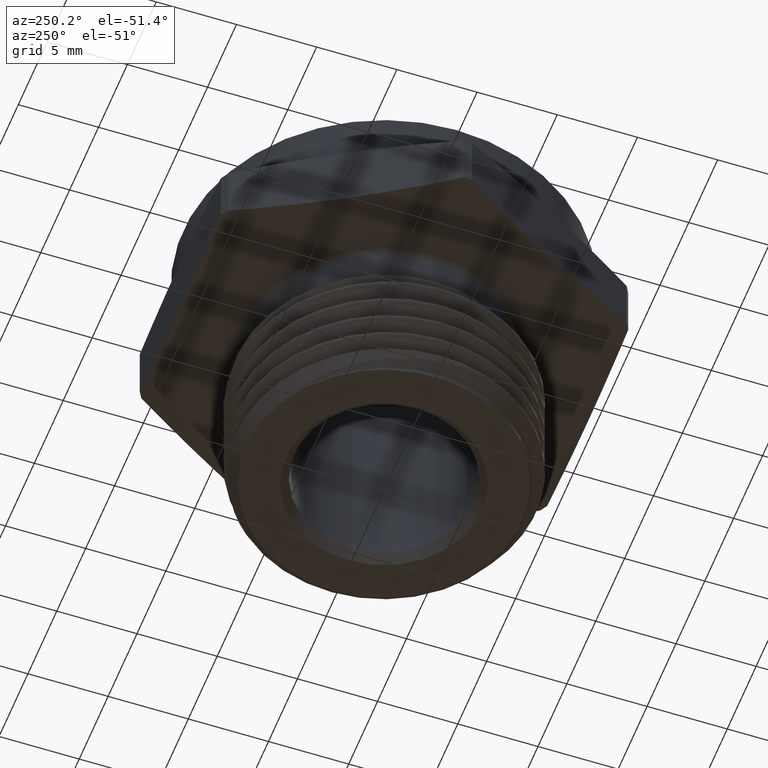
[diagram: clean part render]
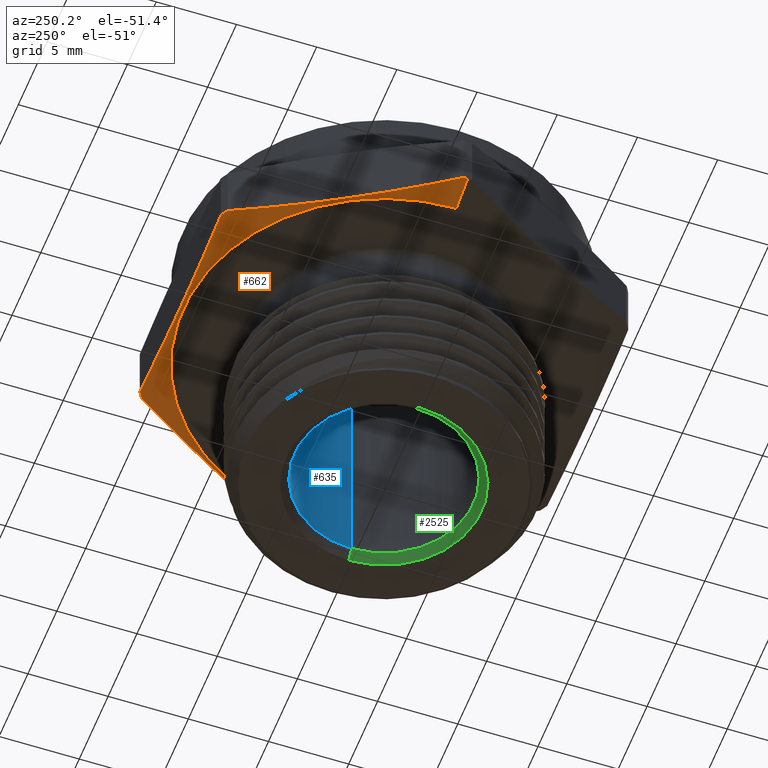
[diagram: same view with three faces highlighted in distinct colors, each labeled with its STEP entity id]
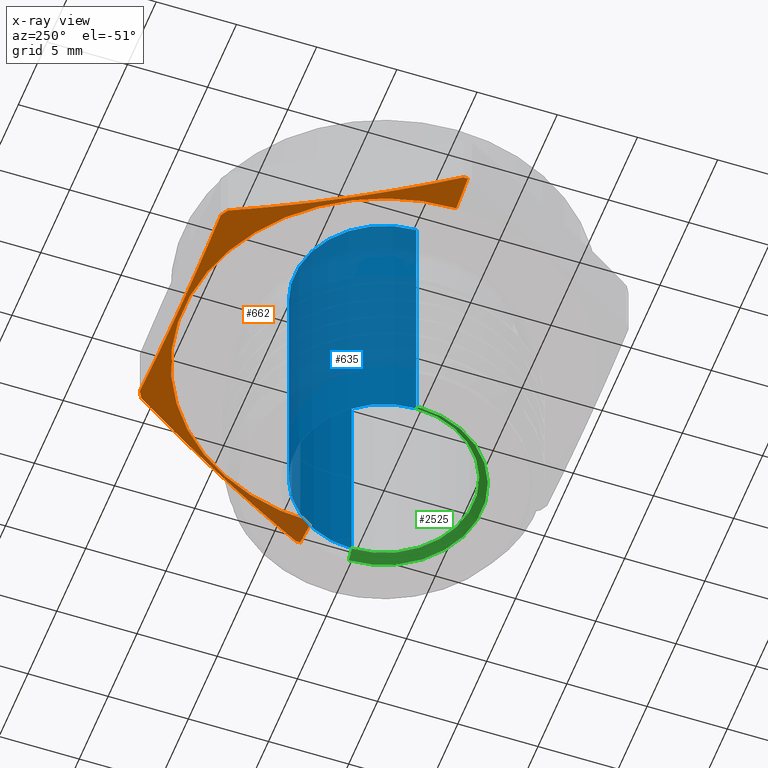
[diagram: x-ray of the same camera — body ghosted, the three highlighted faces saturated]
A machine part, auxiliary view with three faces highlighted in distinct colors.
The next image is the same camera in x-ray (body ghosted, the three faces saturated) — at least one of them is partly hidden behind the body in this view.
Their STEP definitions:

[orange] entity #662 — the highlighted conical surface has half-angle 78 deg.
#80 = CONICAL_SURFACE ( 'NONE', #444, 0.4925000000000000500, 1.361356816555576500 ) ;
#140 = LINE ( 'NONE', #1998, #625 ) ;
#141 = ORIENTED_EDGE ( 'NONE', *, *, #2641, .T. ) ;
#142 = ORIENTED_EDGE ( 'NONE', *, *, #2642, .T. ) ;
#143 = ORIENTED_EDGE ( 'NONE', *, *, #2643, .T. ) ;
#144 = ORIENTED_EDGE ( 'NONE', *, *, #2644, .T. ) ;
#145 = ORIENTED_EDGE ( 'NONE', *, *, #2645, .T. ) ;
#146 = ORIENTED_EDGE ( 'NONE', *, *, #2646, .F. ) ;
#209 = ORIENTED_EDGE ( 'NONE', *, *, #2637, .F. ) ;
#210 = ORIENTED_EDGE ( 'NONE', *, *, #2638, .T. ) ;
#211 = ORIENTED_EDGE ( 'NONE', *, *, #2639, .T. ) ;
#212 = ORIENTED_EDGE ( 'NONE', *, *, #2640, .T. ) ;
#316 = VERTEX_POINT ( 'NONE', #2820 ) ;
#317 = VERTEX_POINT ( 'NONE', #3099 ) ;
#318 = VERTEX_POINT ( 'NONE', #3098 ) ;
#319 = VERTEX_POINT ( 'NONE', #3107 ) ;
#320 = VERTEX_POINT ( 'NONE', #3097 ) ;
#321 = VERTEX_POINT ( 'NONE', #3096 ) ;
#322 = VERTEX_POINT ( 'NONE', #3100 ) ;
#323 = VERTEX_POINT ( 'NONE', #3095 ) ;
#326 = VERTEX_POINT ( 'NONE', #3092 ) ;
#336 = VERTEX_POINT ( 'NONE', #3081 ) ;
#444 = AXIS2_PLACEMENT_3D ( 'NONE', #1403, #1404, #1402 ) ;
#490 = AXIS2_PLACEMENT_3D ( 'NONE', #1978, #1979, #1980 ) ;
#491 = AXIS2_PLACEMENT_3D ( 'NONE', #1983, #1984, #1985 ) ;
#492 = AXIS2_PLACEMENT_3D ( 'NONE', #1995, #1996, #1997 ) ;
#493 = AXIS2_PLACEMENT_3D ( 'NONE', #2009, #2010, #2011 ) ;
#494 = AXIS2_PLACEMENT_3D ( 'NONE', #2020, #2021, #2022 ) ;
#551 = B_SPLINE_CURVE_WITH_KNOTS ( 'NONE', 3,
 ( #1981, #1982, #1986, #1987, #1988, #1989, #1990, #1991, #1992 ),
 .UNSPECIFIED., .F., .F.,
 ( 4, 2, 1, 2, 4 ),
 ( 1.944233093177090900E-006, 0.003513238848234747300, 0.007024533463376317700, 0.01053582807851788400, 0.01404712269365945100 ),
 .UNSPECIFIED. ) ;
#552 = B_SPLINE_CURVE_WITH_KNOTS ( 'NONE', 3,
 ( #1993, #1994, #1999, #2000, #2001, #2002, #2003, #2004, #2005, #2006 ),
 .UNSPECIFIED., .F., .F.,
 ( 4, 2, 2, 2, 4 ),
 ( 0.01247922833637218900, 0.01600441147606443400, 0.01952959461575667900, 0.02305477775544891700, 0.02657996089514116200 ),
 .UNSPECIFIED. ) ;
#553 = B_SPLINE_CURVE_WITH_KNOTS ( 'NONE', 3,
 ( #2007, #2008, #2013, #2014, #2015, #2016, #2017, #2018, #2019 ),
 .UNSPECIFIED., .F., .F.,
 ( 4, 2, 1, 2, 4 ),
 ( 1.944233093197119000E-006, 0.003513238848234765500, 0.007024533463376334200, 0.01053582807851790500, 0.01404712269365947200 ),
 .UNSPECIFIED. ) ;
#615 = LINE ( 'NONE', #1977, #624 ) ;
#620 = CIRCLE ( 'NONE', #490, 0.4925000000000000500 ) ;
#622 = CIRCLE ( 'NONE', #491, 0.5713502691896256100 ) ;
#624 = VECTOR ( 'NONE', #1973, 39.37007874015748100 ) ;
#625 = VECTOR ( 'NONE', #2012, 39.37007874015748900 ) ;
#626 = CIRCLE ( 'NONE', #492, 0.5713502691896256100 ) ;
#627 = CIRCLE ( 'NONE', #493, 0.5713502691896256100 ) ;
#628 = CIRCLE ( 'NONE', #494, 0.5713502691896256100 ) ;
#662 = ADVANCED_FACE ( 'NONE', ( #2465 ), #80, .T. ) ;
#716 = EDGE_LOOP ( 'NONE', ( #209, #210, #211, #212, #141, #142, #143, #144, #145, #146 ) ) ;
#1402 = DIRECTION ( 'NONE',  ( 1.000000000000000000, 0.0000000000000000000, -1.224646799147349800E-016 ) ) ;
#1403 = CARTESIAN_POINT ( 'NONE',  ( 7.386316929609608200E-033, 0.0000000000000000000, 6.031385485800698100E-017 ) ) ;
#1404 = DIRECTION ( 'NONE',  ( 1.224646799147349800E-016, 0.0000000000000000000, 1.000000000000000000 ) ) ;
#1973 = DIRECTION ( 'NONE',  ( -0.9781476007338054700, 1.197885328332318200E-016, 0.2079116908177600400 ) ) ;
#1977 = CARTESIAN_POINT ( 'NONE',  ( -0.4925000000000000500, 6.031385485800715400E-017, 1.206277097160139600E-016 ) ) ;
#1978 = CARTESIAN_POINT ( 'NONE',  ( 7.386316929609608200E-033, 0.0000000000000000000, 6.031385485800698100E-017 ) ) ;
#1979 = DIRECTION ( 'NONE',  ( -1.224646799147349800E-016, -0.0000000000000000000, -1.000000000000000000 ) ) ;
#1980 = DIRECTION ( 'NONE',  ( -1.000000000000000000, 0.0000000000000000000, 1.224646799147349800E-016 ) ) ;
#1981 = CARTESIAN_POINT ( 'NONE',  ( -0.5712526473702338500, 0.01056139079652698400, 0.01676014210570267100 ) ) ;
#1982 = CARTESIAN_POINT ( 'NONE',  ( -0.5482126564572315000, 0.05046782566377240600, 0.01202047403019147400 ) ) ;
#1983 = CARTESIAN_POINT ( 'NONE',  ( 2.052525438300341200E-018, 0.0000000000000000000, 0.01676014210570260200 ) ) ;
#1984 = DIRECTION ( 'NONE',  ( -1.224646799147349800E-016, -0.0000000000000000000, -1.000000000000000000 ) ) ;
#1985 = DIRECTION ( 'NONE',  ( -1.000000000000000000, 0.0000000000000000000, 1.232701897323891900E-016 ) ) ;
#1986 = CARTESIAN_POINT ( 'NONE',  ( -0.5251726655442291400, 0.09037426053101785300, 0.008191484674030425800 ) ) ;
#1987 = CARTESIAN_POINT ( 'NONE',  ( -0.4790926837182244400, 0.1701871302655087700, 0.002971307794232203700 ) ) ;
#1988 = CARTESIAN_POINT ( 'NONE',  ( -0.4330127018922195800, 0.2499999999999997200, 0.0002170406308183443100 ) ) ;
#1989 = CARTESIAN_POINT ( 'NONE',  ( -0.3869327200662146000, 0.3298128697344907500, 0.002971307794232214100 ) ) ;
#1990 = CARTESIAN_POINT ( 'NONE',  ( -0.3408527382402099000, 0.4096257394689816200, 0.008191484674030429300 ) ) ;
#1991 = CARTESIAN_POINT ( 'NONE',  ( -0.3178127473272074900, 0.4495321743362270000, 0.01202047403019145000 ) ) ;
#1992 = CARTESIAN_POINT ( 'NONE',  ( -0.2947727564142051400, 0.4894386092034723700, 0.01676014210570252900 ) ) ;
#1993 = CARTESIAN_POINT ( 'NONE',  ( -0.2764798909560289800, 0.5000000000000000000, 0.01676014210570263600 ) ) ;
#1994 = CARTESIAN_POINT ( 'NONE',  ( -0.2304247505594923800, 0.5000000000000001100, 0.01202302915555247500 ) ) ;
#1995 = CARTESIAN_POINT ( 'NONE',  ( 2.052525438300341200E-018, 0.0000000000000000000, 0.01676014210570260200 ) ) ;
#1996 = DIRECTION ( 'NONE',  ( -1.224646799147349800E-016, -0.0000000000000000000, -1.000000000000000000 ) ) ;
#1997 = DIRECTION ( 'NONE',  ( -1.000000000000000000, 0.0000000000000000000, 1.232701897323891900E-016 ) ) ;
#1998 = CARTESIAN_POINT ( 'NONE',  ( 0.4925000000000000500, 0.0000000000000000000, 0.0000000000000000000 ) ) ;
#1999 = CARTESIAN_POINT ( 'NONE',  ( -0.1842048312148132100, 0.5000000000000001100, 0.008181783962476948600 ) ) ;
#2000 = CARTESIAN_POINT ( 'NONE',  ( -0.09191216363009094300, 0.5000000000000000000, 0.002960465671903413300 ) ) ;
#2001 = CARTESIAN_POINT ( 'NONE',  ( -0.04579363481263580600, 0.4999999999999999400, 0.001588433088826188800 ) ) ;
#2002 = CARTESIAN_POINT ( 'NONE',  ( 0.04638156483337255200, 0.4999999999999999400, 0.001599952072553285600 ) ) ;
#2003 = CARTESIAN_POINT ( 'NONE',  ( 0.09243824480201570700, 0.5000000000000001100, 0.002983096476316943100 ) ) ;
#2004 = CARTESIAN_POINT ( 'NONE',  ( 0.1844964698020087300, 0.5000000000000001100, 0.008205478053863958900 ) ) ;
#2005 = CARTESIAN_POINT ( 'NONE',  ( 0.2304983317507585700, 0.5000000000000001100, 0.01203059752709647300 ) ) ;
#2006 = CARTESIAN_POINT ( 'NONE',  ( 0.2764798909560289800, 0.5000000000000000000, 0.01676014210570252900 ) ) ;
#2007 = CARTESIAN_POINT ( 'NONE',  ( 0.2947727564142047500, 0.4894386092034727600, 0.01676014210570256300 ) ) ;
#2008 = CARTESIAN_POINT ( 'NONE',  ( 0.3178127473272071000, 0.4495321743362271600, 0.01202047403019136700 ) ) ;
#2009 = CARTESIAN_POINT ( 'NONE',  ( 2.052525438300341200E-018, 0.0000000000000000000, 0.01676014210570260200 ) ) ;
#2010 = DIRECTION ( 'NONE',  ( -1.224646799147349800E-016, -0.0000000000000000000, -1.000000000000000000 ) ) ;
#2011 = DIRECTION ( 'NONE',  ( -1.000000000000000000, 0.0000000000000000000, 1.232701897323891900E-016 ) ) ;
#2012 = DIRECTION ( 'NONE',  ( 0.9781476007338054700, 0.0000000000000000000, 0.2079116908177598100 ) ) ;
#2013 = CARTESIAN_POINT ( 'NONE',  ( 0.3408527382402096200, 0.4096257394689820100, 0.008191484674030332200 ) ) ;
#2014 = CARTESIAN_POINT ( 'NONE',  ( 0.3869327200662144300, 0.3298128697344909200, 0.002971307794232109200 ) ) ;
#2015 = CARTESIAN_POINT ( 'NONE',  ( 0.4330127018922192400, 0.2500000000000002200, 0.0002170406308182319800 ) ) ;
#2016 = CARTESIAN_POINT ( 'NONE',  ( 0.4790926837182242200, 0.1701871302655092200, 0.002971307794232089700 ) ) ;
#2017 = CARTESIAN_POINT ( 'NONE',  ( 0.5251726655442290300, 0.09037426053101838000, 0.008191484674030299200 ) ) ;
#2018 = CARTESIAN_POINT ( 'NONE',  ( 0.5482126564572313800, 0.05046782566377296100, 0.01202047403019133900 ) ) ;
#2019 = CARTESIAN_POINT ( 'NONE',  ( 0.5712526473702337300, 0.01056139079652753000, 0.01676014210570252900 ) ) ;
#2020 = CARTESIAN_POINT ( 'NONE',  ( 2.052525438300341200E-018, 0.0000000000000000000, 0.01676014210570260200 ) ) ;
#2021 = DIRECTION ( 'NONE',  ( -1.224646799147349800E-016, -0.0000000000000000000, -1.000000000000000000 ) ) ;
#2022 = DIRECTION ( 'NONE',  ( -1.000000000000000000, 0.0000000000000000000, 1.232701897323891900E-016 ) ) ;
#2465 = FACE_OUTER_BOUND ( 'NONE', #716, .T. ) ;
#2637 = EDGE_CURVE ( 'NONE', #336, #326, #620, .T. ) ;
#2638 = EDGE_CURVE ( 'NONE', #336, #323, #615, .T. ) ;
#2639 = EDGE_CURVE ( 'NONE', #323, #322, #622, .T. ) ;
#2640 = EDGE_CURVE ( 'NONE', #322, #321, #551, .T. ) ;
#2641 = EDGE_CURVE ( 'NONE', #321, #320, #626, .T. ) ;
#2642 = EDGE_CURVE ( 'NONE', #320, #319, #552, .T. ) ;
#2643 = EDGE_CURVE ( 'NONE', #319, #318, #627, .T. ) ;
#2644 = EDGE_CURVE ( 'NONE', #318, #317, #553, .T. ) ;
#2645 = EDGE_CURVE ( 'NONE', #317, #316, #628, .T. ) ;
#2646 = EDGE_CURVE ( 'NONE', #326, #316, #140, .T. ) ;
#2820 = CARTESIAN_POINT ( 'NONE',  ( 0.5713502691896256100, 0.0000000000000000000, 0.01676014210570253200 ) ) ;
#3081 = CARTESIAN_POINT ( 'NONE',  ( -0.4925000000000000500, 6.031385485800715400E-017, 1.206277097160139600E-016 ) ) ;
#3092 = CARTESIAN_POINT ( 'NONE',  ( 0.4925000000000000500, 0.0000000000000000000, 0.0000000000000000000 ) ) ;
#3095 = CARTESIAN_POINT ( 'NONE',  ( -0.5713502691896256100, 0.0000000000000000000, 0.01676014210570267100 ) ) ;
#3096 = CARTESIAN_POINT ( 'NONE',  ( -0.2947727564142051400, 0.4894386092034723700, 0.01676014210570252900 ) ) ;
#3097 = CARTESIAN_POINT ( 'NONE',  ( -0.2764798909560289800, 0.5000000000000000000, 0.01676014210570263600 ) ) ;
#3098 = CARTESIAN_POINT ( 'NONE',  ( 0.2947727564142047500, 0.4894386092034727600, 0.01676014210570256300 ) ) ;
#3099 = CARTESIAN_POINT ( 'NONE',  ( 0.5712526473702337300, 0.01056139079652753000, 0.01676014210570252900 ) ) ;
#3100 = CARTESIAN_POINT ( 'NONE',  ( -0.5712526473702338500, 0.01056139079652698400, 0.01676014210570267100 ) ) ;
#3107 = CARTESIAN_POINT ( 'NONE',  ( 0.2764798909560289800, 0.5000000000000000000, 0.01676014210570252900 ) ) ;

[blue] entity #635 — the highlighted cylindrical surface (partial cylindrical patch) has radius 5.588 mm, axis along (-0, -0, 1).
#32 = EDGE_LOOP ( 'NONE', ( #2792, #2793, #2794, #2795 ) ) ;
#271 = CIRCLE ( 'NONE', #515, 0.2200000000000001100 ) ;
#272 = CIRCLE ( 'NONE', #516, 0.2200000000000000600 ) ;
#389 = VERTEX_POINT ( 'NONE', #3054 ) ;
#515 = AXIS2_PLACEMENT_3D ( 'NONE', #801, #802, #803 ) ;
#516 = AXIS2_PLACEMENT_3D ( 'NONE', #806, #807, #808 ) ;
#583 = LINE ( 'NONE', #1729, #588 ) ;
#587 = LINE ( 'NONE', #1734, #591 ) ;
#588 = VECTOR ( 'NONE', #1724, 39.37007874015748100 ) ;
#591 = VECTOR ( 'NONE', #1733, 39.37007874015748100 ) ;
#635 = ADVANCED_FACE ( 'NONE', ( #2417 ), #2421, .F. ) ;
#801 = CARTESIAN_POINT ( 'NONE',  ( 0.0000000000000000000, 0.0000000000000000000, 0.2400000000000000700 ) ) ;
#802 = DIRECTION ( 'NONE',  ( -0.0000000000000000000, -0.0000000000000000000, 1.000000000000000000 ) ) ;
#803 = DIRECTION ( 'NONE',  ( 1.000000000000000000, 0.0000000000000000000, 0.0000000000000000000 ) ) ;
#806 = CARTESIAN_POINT ( 'NONE',  ( 0.0000000000000000000, 0.0000000000000000000, -0.4199999999999999800 ) ) ;
#807 = DIRECTION ( 'NONE',  ( -0.0000000000000000000, -0.0000000000000000000, 1.000000000000000000 ) ) ;
#808 = DIRECTION ( 'NONE',  ( 1.000000000000000000, 0.0000000000000000000, 0.0000000000000000000 ) ) ;
#1492 = CARTESIAN_POINT ( 'NONE',  ( -0.2200000000000000600, 2.694222958124177900E-017, -0.4199999999999999800 ) ) ;
#1497 = CARTESIAN_POINT ( 'NONE',  ( 0.2200000000000000600, 0.0000000000000000000, -0.4199999999999999800 ) ) ;
#1504 = CARTESIAN_POINT ( 'NONE',  ( -0.2200000000000001100, 2.694222958124178500E-017, 0.2400000000000000700 ) ) ;
#1724 = DIRECTION ( 'NONE',  ( -0.0000000000000000000, -0.0000000000000000000, 1.000000000000000000 ) ) ;
#1729 = CARTESIAN_POINT ( 'NONE',  ( 0.2200000000000000800, 0.0000000000000000000, 0.3947604000970203500 ) ) ;
#1733 = DIRECTION ( 'NONE',  ( -0.0000000000000000000, -0.0000000000000000000, 1.000000000000000000 ) ) ;
#1734 = CARTESIAN_POINT ( 'NONE',  ( -0.2200000000000000800, 2.694222958124177900E-017, 0.3947604000970203500 ) ) ;
#2417 = FACE_OUTER_BOUND ( 'NONE', #32, .T. ) ;
#2421 = CYLINDRICAL_SURFACE ( 'NONE', #2732, 0.2200000000000000800 ) ;
#2510 = VERTEX_POINT ( 'NONE', #1492 ) ;
#2515 = VERTEX_POINT ( 'NONE', #1497 ) ;
#2522 = VERTEX_POINT ( 'NONE', #1504 ) ;
#2599 = EDGE_CURVE ( 'NONE', #2515, #389, #583, .T. ) ;
#2601 = EDGE_CURVE ( 'NONE', #2510, #2522, #587, .T. ) ;
#2694 = EDGE_CURVE ( 'NONE', #389, #2522, #271, .T. ) ;
#2695 = EDGE_CURVE ( 'NONE', #2515, #2510, #272, .T. ) ;
#2732 = AXIS2_PLACEMENT_3D ( 'NONE', #3012, #3016, #3014 ) ;
#2792 = ORIENTED_EDGE ( 'NONE', *, *, #2601, .F. ) ;
#2793 = ORIENTED_EDGE ( 'NONE', *, *, #2695, .F. ) ;
#2794 = ORIENTED_EDGE ( 'NONE', *, *, #2599, .T. ) ;
#2795 = ORIENTED_EDGE ( 'NONE', *, *, #2694, .T. ) ;
#3012 = CARTESIAN_POINT ( 'NONE',  ( 0.0000000000000000000, 0.0000000000000000000, 0.3947604000970203500 ) ) ;
#3014 = DIRECTION ( 'NONE',  ( 1.000000000000000000, 0.0000000000000000000, 0.0000000000000000000 ) ) ;
#3016 = DIRECTION ( 'NONE',  ( -0.0000000000000000000, -0.0000000000000000000, 1.000000000000000000 ) ) ;
#3054 = CARTESIAN_POINT ( 'NONE',  ( 0.2200000000000001100, 0.0000000000000000000, 0.2400000000000000700 ) ) ;

[green] entity #2525 — the highlighted conical surface has half-angle 45 deg.
#107 = LINE ( 'NONE', #1512, #125 ) ;
#115 = FACE_OUTER_BOUND ( 'NONE', #733, .T. ) ;
#117 = CONICAL_SURFACE ( 'NONE', #469, 0.2200000000000000600, 0.7853981633974500600 ) ;
#121 = CIRCLE ( 'NONE', #471, 0.2200000000000000600 ) ;
#125 = VECTOR ( 'NONE', #1514, 39.37007874015748900 ) ;
#177 = ORIENTED_EDGE ( 'NONE', *, *, #2603, .F. ) ;
#178 = ORIENTED_EDGE ( 'NONE', *, *, #2602, .F. ) ;
#349 = ORIENTED_EDGE ( 'NONE', *, *, #2569, .T. ) ;
#350 = ORIENTED_EDGE ( 'NONE', *, *, #2568, .T. ) ;
#401 = VERTEX_POINT ( 'NONE', #3041 ) ;
#469 = AXIS2_PLACEMENT_3D ( 'NONE', #1510, #1511, #1507 ) ;
#471 = AXIS2_PLACEMENT_3D ( 'NONE', #1522, #1523, #1524 ) ;
#478 = AXIS2_PLACEMENT_3D ( 'NONE', #1741, #1742, #1743 ) ;
#589 = CIRCLE ( 'NONE', #478, 0.2400000000000001900 ) ;
#590 = LINE ( 'NONE', #1738, #593 ) ;
#593 = VECTOR ( 'NONE', #1739, 39.37007874015748900 ) ;
#733 = EDGE_LOOP ( 'NONE', ( #349, #350, #177, #178 ) ) ;
#1492 = CARTESIAN_POINT ( 'NONE',  ( -0.2200000000000000600, 2.694222958124177900E-017, -0.4199999999999999800 ) ) ;
#1494 = CARTESIAN_POINT ( 'NONE',  ( -0.2400000000000001900, 0.0000000000000000000, -0.4400000000000000000 ) ) ;
#1497 = CARTESIAN_POINT ( 'NONE',  ( 0.2200000000000000600, 0.0000000000000000000, -0.4199999999999999800 ) ) ;
#1507 = DIRECTION ( 'NONE',  ( -1.000000000000000000, 0.0000000000000000000, 0.0000000000000000000 ) ) ;
#1510 = CARTESIAN_POINT ( 'NONE',  ( 0.0000000000000000000, 0.0000000000000000000, -0.4199999999999999800 ) ) ;
#1511 = DIRECTION ( 'NONE',  ( 0.0000000000000000000, 0.0000000000000000000, -1.000000000000000000 ) ) ;
#1512 = CARTESIAN_POINT ( 'NONE',  ( 0.2200000000000000600, 2.694222958124177600E-017, -0.4199999999999999800 ) ) ;
#1514 = DIRECTION ( 'NONE',  ( 0.7071067811865486800, 8.659560562354947600E-017, -0.7071067811865462400 ) ) ;
#1522 = CARTESIAN_POINT ( 'NONE',  ( 0.0000000000000000000, 0.0000000000000000000, -0.4199999999999999800 ) ) ;
#1523 = DIRECTION ( 'NONE',  ( -0.0000000000000000000, -0.0000000000000000000, 1.000000000000000000 ) ) ;
#1524 = DIRECTION ( 'NONE',  ( 1.000000000000000000, 0.0000000000000000000, 0.0000000000000000000 ) ) ;
#1738 = CARTESIAN_POINT ( 'NONE',  ( -0.2200000000000000600, 0.0000000000000000000, -0.4199999999999999800 ) ) ;
#1739 = DIRECTION ( 'NONE',  ( -0.7071067811865486800, 0.0000000000000000000, -0.7071067811865462400 ) ) ;
#1741 = CARTESIAN_POINT ( 'NONE',  ( 0.0000000000000000000, 0.0000000000000000000, -0.4400000000000000000 ) ) ;
#1742 = DIRECTION ( 'NONE',  ( -0.0000000000000000000, -0.0000000000000000000, 1.000000000000000000 ) ) ;
#1743 = DIRECTION ( 'NONE',  ( 1.000000000000000000, 0.0000000000000000000, 0.0000000000000000000 ) ) ;
#2510 = VERTEX_POINT ( 'NONE', #1492 ) ;
#2512 = VERTEX_POINT ( 'NONE', #1494 ) ;
#2515 = VERTEX_POINT ( 'NONE', #1497 ) ;
#2525 = ADVANCED_FACE ( 'NONE', ( #115 ), #117, .F. ) ;
#2568 = EDGE_CURVE ( 'NONE', #2515, #401, #107, .T. ) ;
#2569 = EDGE_CURVE ( 'NONE', #2510, #2515, #121, .T. ) ;
#2602 = EDGE_CURVE ( 'NONE', #2510, #2512, #590, .T. ) ;
#2603 = EDGE_CURVE ( 'NONE', #2512, #401, #589, .T. ) ;
#3041 = CARTESIAN_POINT ( 'NONE',  ( 0.2400000000000001900, 2.939152317953649800E-017, -0.4400000000000000000 ) ) ;